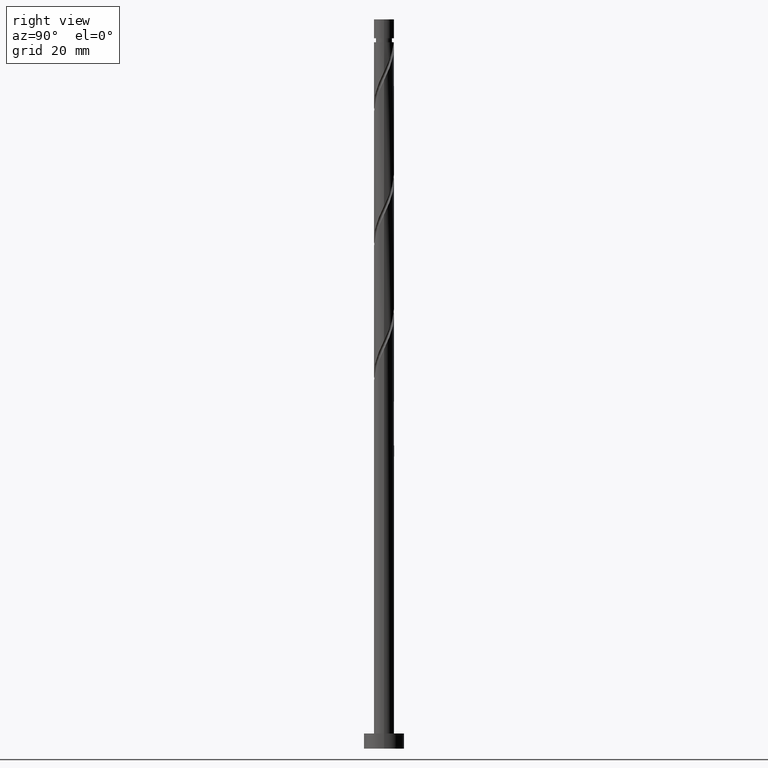
[diagram: clean part render]
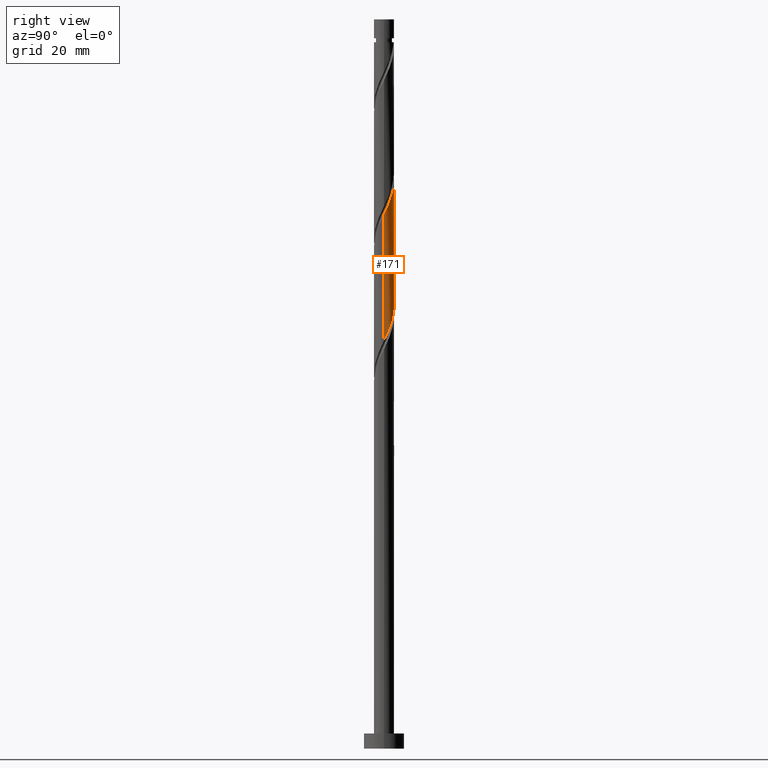
[diagram: same view with one face highlighted and labeled with its STEP entity id]
A machine part, right view. The second image highlights one B-rep face of the part: STEP entity #171.
In plain terms, the highlighted cylindrical surface (edge-blend (fillet) strip) has radius 2 mm, axis along (-0, -0, -1).
Its self-contained STEP definition (entity closure, byte-faithful):
#1 = CARTESIAN_POINT ( 'NONE',  ( -1.741900447066340618, 0.9827425057002951991, 117.0378681070206568 ) ) ;
#20 = CARTESIAN_POINT ( 'NONE',  ( -1.394470680848408417, 1.433684595806968387, 115.8257468948994671 ) ) ;
#22 = CARTESIAN_POINT ( 'NONE',  ( -1.448427499289741238, 1.408810338760219993, 90.97726204641460868 ) ) ;
#33 = CARTESIAN_POINT ( 'NONE',  ( 0.3979949748426487854, 1.959999999999999520, 86.73483780399035936 ) ) ;
#90 = CYLINDRICAL_SURFACE ( 'NONE', #224, 2.000000000000000000 ) ;
#127 = CARTESIAN_POINT ( 'NONE',  ( -1.948211798543803219, 0.4521844623765087223, 118.2499893191418892 ) ) ;
#141 = CARTESIAN_POINT ( 'NONE',  ( -2.000000000000003553, 1.226459297686698274E-15, 119.2187166580228279 ) ) ;
#151 = CARTESIAN_POINT ( 'NONE',  ( 0.9928482695149684067, 1.759812803970230322, 110.3712014403540138 ) ) ;
#153 = CARTESIAN_POINT ( 'NONE',  ( -1.883409435608315752, 0.6728810428757545647, 92.79544386459640748 ) ) ;
#162 = CARTESIAN_POINT ( 'NONE',  ( 0.1161895186125007917, 2.017223038501447352, 87.34089841005095423 ) ) ;
#171 = ADVANCED_FACE ( 'NONE', ( #870 ), #90, .T. ) ;
#173 = DIRECTION ( 'NONE',  ( -0.000000000000000000, -0.000000000000000000, -1.000000000000000000 ) ) ;
#224 = AXIS2_PLACEMENT_3D ( 'NONE', #349, #1122, #463 ) ;
#260 = CARTESIAN_POINT ( 'NONE',  ( 1.999999999999999556, 3.036234602809776601E-15, 80.91762561662460485 ) ) ;
#274 = CARTESIAN_POINT ( 'NONE',  ( -0.6798004310727968624, 1.902776961498554797, 114.0075650767176256 ) ) ;
#281 = CARTESIAN_POINT ( 'NONE',  ( 1.883409435608319527, 0.6728810428757548978, 107.3408984100509826 ) ) ;
#283 = CARTESIAN_POINT ( 'NONE',  ( -1.999999999999999112, 0.05755105304764902840, 94.12886094523967984 ) ) ;
#303 = CARTESIAN_POINT ( 'NONE',  ( -0.1161895186125002782, 2.017223038501450905, 112.7954438645964501 ) ) ;
#312 =( BOUNDED_CURVE ( )  B_SPLINE_CURVE ( 2, ( #1556, #283, #675, #1309, #153, #669, #1071, #22, #544, #1566, #409, #936, #801, #162, #33, #553, #1576, #1142, #646, #761, #1272, #362, #499, #903, #260 ),
 .UNSPECIFIED., .F., .T. ) 
 B_SPLINE_CURVE_WITH_KNOTS ( ( 3, 2, 2, 2, 2, 2, 2, 2, 2, 2, 2, 2, 3 ),
 ( 0.6795252162417514397, 0.6818181818181817677, 0.6931818181818182323, 0.7045454545454545858, 0.7159090909090909394, 0.7272727272727272929, 0.7386363636363636465, 0.7500000000000000000, 0.7613636363636363535, 0.7727272727272727071, 0.7840909090909090606, 0.7954545454545454142, 0.8045252162417509956 ),
 .UNSPECIFIED. ) 
 CURVE ( )  GEOMETRIC_REPRESENTATION_ITEM ( )  RATIONAL_B_SPLINE_CURVE ( ( 0.9061101570135594585, 0.9072237824201415668, 0.9090909090909189416, 0.8998376744372211800, 0.9090909090909189416, 0.8998376744372211800, 0.9090909090909189416, 0.8998376744372211800, 0.9090909090909189416, 0.8998376744372211800, 0.9090909090909189416, 0.8998376744372211800, 0.9090909090909189416, 0.8998376744372211800, 0.9090909090909189416, 0.8998376744372211800, 0.9090909090909189416, 0.8998376744372211800, 0.9090909090909189416, 0.8998376744372211800, 0.9090909090909189416, 0.8998376744372211800, 0.9090909090909189416, 0.9017048011079989989, 0.9061101570135590144 ) ) 
 REPRESENTATION_ITEM ( '' )  );
#349 = CARTESIAN_POINT ( 'NONE',  ( 0.000000000000000000, 0.000000000000000000, 144.5999999999999943 ) ) ;
#362 = CARTESIAN_POINT ( 'NONE',  ( 1.883197487972272155, 0.7322950311120126621, 82.49241356156611005 ) ) ;
#409 = CARTESIAN_POINT ( 'NONE',  ( -0.7248413235775359453, 1.864029252891264754, 89.15908022823278145 ) ) ;
#436 = EDGE_CURVE ( 'NONE', #1154, #1523, #696, .T. ) ;
#439 = EDGE_CURVE ( 'NONE', #1154, #592, #658, .T. ) ;
#463 = DIRECTION ( 'NONE',  ( -1.000000000000000000, 0.000000000000000000, 0.000000000000000000 ) ) ;
#499 = CARTESIAN_POINT ( 'NONE',  ( 1.948211798543799889, 0.4521844623765067239, 81.88635295550548676 ) ) ;
#512 = CARTESIAN_POINT ( 'NONE',  ( 1.220637884402356210, 1.584311571365226490, 109.7651408342934047 ) ) ;
#522 = CARTESIAN_POINT ( 'NONE',  ( -2.000000000000003109, 0.2290578547702474543, 118.7327567050515285 ) ) ;
#533 = CARTESIAN_POINT ( 'NONE',  ( 2.000000000000003553, 1.450811608239142856E-15, 105.8853833246894993 ) ) ;
#544 = CARTESIAN_POINT ( 'NONE',  ( -1.220637884402353768, 1.584311571365223825, 90.37120144035398539 ) ) ;
#551 = CARTESIAN_POINT ( 'NONE',  ( 0.7248413235775370556, 1.864029252891267419, 110.9772620464146087 ) ) ;
#553 = CARTESIAN_POINT ( 'NONE',  ( 0.6798004310727964183, 1.902776961498551023, 86.12877719792976450 ) ) ;
#592 = VERTEX_POINT ( 'NONE', #1145 ) ;
#623 = VECTOR ( 'NONE', #173, 1000.000000000000000 ) ;
#646 = CARTESIAN_POINT ( 'NONE',  ( 1.394470680848405975, 1.433684595806965278, 84.31059537974793727 ) ) ;
#658 = LINE ( 'NONE', #1176, #1160 ) ;
#667 = CARTESIAN_POINT ( 'NONE',  ( -0.9340691933046030293, 1.768478086411957806, 114.6136256827782489 ) ) ;
#669 = CARTESIAN_POINT ( 'NONE',  ( -1.786663747202081876, 0.9436744384215539627, 92.18938325853579840 ) ) ;
#675 = CARTESIAN_POINT ( 'NONE',  ( -1.996690616564938958, 0.1150068768444773154, 94.00756507671765405 ) ) ;
#696 =( BOUNDED_CURVE ( )  B_SPLINE_CURVE ( 2, ( #533, #910, #1197, #1421, #281, #799, #1307, #1655, #512, #151, #551, #1446, #1439, #303, #1162, #274, #667, #811, #20, #1297, #1, #926, #127, #522, #141 ),
 .UNSPECIFIED., .F., .T. ) 
 B_SPLINE_CURVE_WITH_KNOTS ( ( 3, 2, 2, 2, 2, 2, 2, 2, 2, 2, 2, 2, 3 ),
 ( 0.4295252162417518838, 0.4318181818181817677, 0.4431818181818182323, 0.4545454545454545858, 0.4659090909090909394, 0.4772727272727272929, 0.4886363636363636465, 0.5000000000000000000, 0.5113636363636363535, 0.5227272727272727071, 0.5340909090909091717, 0.5454545454545454142, 0.5545252162417513286 ),
 .UNSPECIFIED. ) 
 CURVE ( )  GEOMETRIC_REPRESENTATION_ITEM ( )  RATIONAL_B_SPLINE_CURVE ( ( 0.9061101570135667860, 0.9072237824201488943, 0.9090909090909258250, 0.8998376744372282854, 0.9090909090909258250, 0.8998376744372282854, 0.9090909090909258250, 0.8998376744372282854, 0.9090909090909258250, 0.8998376744372282854, 0.9090909090909258250, 0.8998376744372282854, 0.9090909090909258250, 0.8998376744372282854, 0.9090909090909258250, 0.8998376744372282854, 0.9090909090909258250, 0.8998376744372282854, 0.9090909090909258250, 0.8998376744372282854, 0.9090909090909258250, 0.8998376744372282854, 0.9090909090909258250, 0.9017048011080057712, 0.9061101570135661198 ) ) 
 REPRESENTATION_ITEM ( '' )  );
#761 = CARTESIAN_POINT ( 'NONE',  ( 1.600603406160404418, 1.233189980288573073, 83.70453477368734241 ) ) ;
#780 = LINE ( 'NONE', #1190, #623 ) ;
#799 = CARTESIAN_POINT ( 'NONE',  ( 1.786663747202085428, 0.9436744384215547399, 107.9469590161116059 ) ) ;
#801 = CARTESIAN_POINT ( 'NONE',  ( -0.1703224295138022204, 1.992734370156873824, 87.94695901611159172 ) ) ;
#811 = CARTESIAN_POINT ( 'NONE',  ( -1.188337955536409307, 1.634179211325361480, 115.2196862888388580 ) ) ;
#836 = ORIENTED_EDGE ( 'NONE', *, *, #436, .F. ) ;
#870 = FACE_OUTER_BOUND ( 'NONE', #1329, .T. ) ;
#872 = CARTESIAN_POINT ( 'NONE',  ( -1.999999999999999112, 2.146303770951738101E-15, 94.25095894995790502 ) ) ;
#903 = CARTESIAN_POINT ( 'NONE',  ( 1.999999999999997780, 0.2290578547702519785, 81.40358556959591851 ) ) ;
#910 = CARTESIAN_POINT ( 'NONE',  ( 2.000000000000002220, 0.05755105304765952001, 106.0074813294077529 ) ) ;
#926 = CARTESIAN_POINT ( 'NONE',  ( -1.883197487972274597, 0.7322950311120153266, 117.6439287130812801 ) ) ;
#936 = CARTESIAN_POINT ( 'NONE',  ( -0.4568343776401053158, 1.968245701812300963, 88.55301962217221501 ) ) ;
#983 = ORIENTED_EDGE ( 'NONE', *, *, #1221, .F. ) ;
#999 = ORIENTED_EDGE ( 'NONE', *, *, #1186, .F. ) ;
#1060 = DIRECTION ( 'NONE',  ( -0.000000000000000000, -0.000000000000000000, -1.000000000000000000 ) ) ;
#1071 = CARTESIAN_POINT ( 'NONE',  ( -1.617545623245911113, 1.176242388590886589, 91.58332265247520354 ) ) ;
#1122 = DIRECTION ( 'NONE',  ( -0.000000000000000000, -0.000000000000000000, -1.000000000000000000 ) ) ;
#1142 = CARTESIAN_POINT ( 'NONE',  ( 1.188337955536407531, 1.634179211325357928, 84.91665598580856056 ) ) ;
#1145 = CARTESIAN_POINT ( 'NONE',  ( 1.999999999999999556, 3.036234602809776206E-15, 80.91762561662460485 ) ) ;
#1154 = VERTEX_POINT ( 'NONE', #1623 ) ;
#1160 = VECTOR ( 'NONE', #1060, 1000.000000000000000 ) ;
#1162 = CARTESIAN_POINT ( 'NONE',  ( -0.3979949748426483969, 1.960000000000003073, 113.4015044706570308 ) ) ;
#1176 = CARTESIAN_POINT ( 'NONE',  ( 2.000000000000000000, 2.449293598294706414E-16, 144.5999999999999943 ) ) ;
#1186 = EDGE_CURVE ( 'NONE', #1523, #1372, #780, .T. ) ;
#1190 = CARTESIAN_POINT ( 'NONE',  ( -2.000000000000000000, 0.000000000000000000, 144.5999999999999943 ) ) ;
#1197 = CARTESIAN_POINT ( 'NONE',  ( 1.996690616564942955, 0.1150068768444766631, 106.1287771979297645 ) ) ;
#1221 = EDGE_CURVE ( 'NONE', #1372, #592, #312, .T. ) ;
#1272 = CARTESIAN_POINT ( 'NONE',  ( 1.741900447066337954, 0.9827425057002933118, 83.09847416762673333 ) ) ;
#1297 = CARTESIAN_POINT ( 'NONE',  ( -1.600603406160407305, 1.233189980288575072, 116.4318075009600477 ) ) ;
#1307 = CARTESIAN_POINT ( 'NONE',  ( 1.617545623245914888, 1.176242388590887922, 108.5530196221721582 ) ) ;
#1309 = CARTESIAN_POINT ( 'NONE',  ( -1.980155124014550738, 0.4020876473299554443, 93.40150447065703077 ) ) ;
#1329 = EDGE_LOOP ( 'NONE', ( #836, #1506, #983, #999 ) ) ;
#1372 = VERTEX_POINT ( 'NONE', #872 ) ;
#1421 = CARTESIAN_POINT ( 'NONE',  ( 1.980155124014553847, 0.4020876473299552778, 106.7348378039903594 ) ) ;
#1439 = CARTESIAN_POINT ( 'NONE',  ( 0.1703224295138031086, 1.992734370156877821, 112.1893832585358268 ) ) ;
#1446 = CARTESIAN_POINT ( 'NONE',  ( 0.4568343776401064815, 1.968245701812304516, 111.5833226524752178 ) ) ;
#1506 = ORIENTED_EDGE ( 'NONE', *, *, #439, .T. ) ;
#1523 = VERTEX_POINT ( 'NONE', #1577 ) ;
#1556 = CARTESIAN_POINT ( 'NONE',  ( -1.999999999999999112, 2.146303770951738496E-15, 94.25095894995790502 ) ) ;
#1566 = CARTESIAN_POINT ( 'NONE',  ( -0.9928482695149670745, 1.759812803970227879, 89.76514083429341895 ) ) ;
#1576 = CARTESIAN_POINT ( 'NONE',  ( 0.9340691933046018081, 1.768478086411954475, 85.52271659186914121 ) ) ;
#1577 = CARTESIAN_POINT ( 'NONE',  ( -2.000000000000003553, 1.226459297686698274E-15, 119.2187166580228279 ) ) ;
#1623 = CARTESIAN_POINT ( 'NONE',  ( 2.000000000000003553, 1.450811608239142856E-15, 105.8853833246894993 ) ) ;
#1655 = CARTESIAN_POINT ( 'NONE',  ( 1.448427499289744791, 1.408810338760220882, 109.1590802282327815 ) ) ;